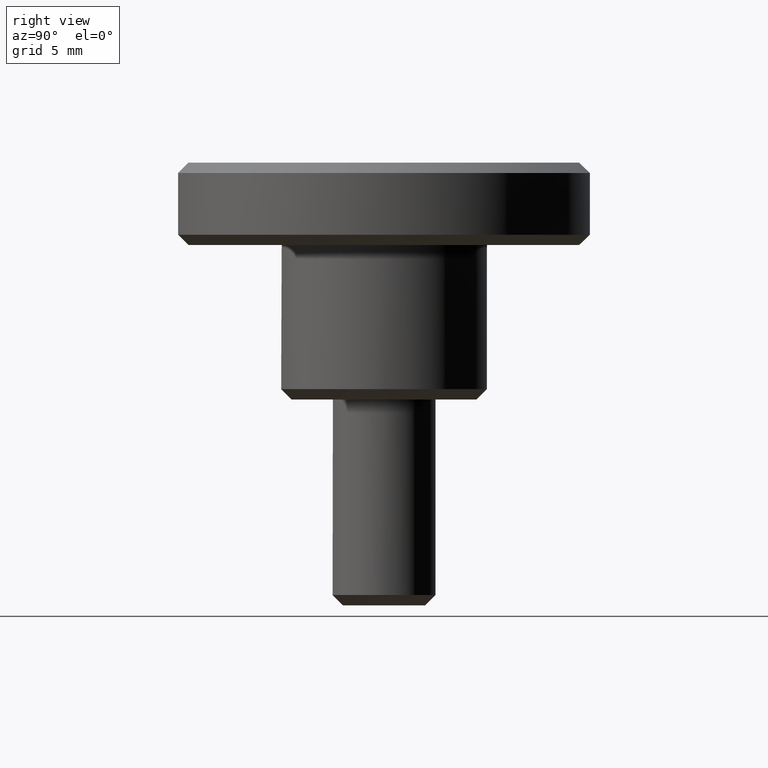
[diagram: clean part render]
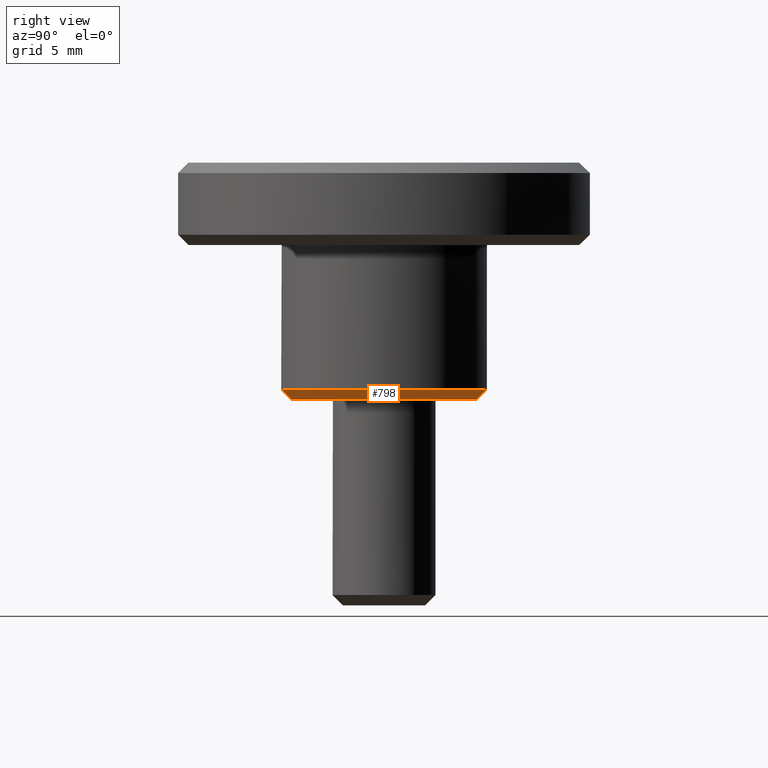
[diagram: same view with one face highlighted and labeled with its STEP entity id]
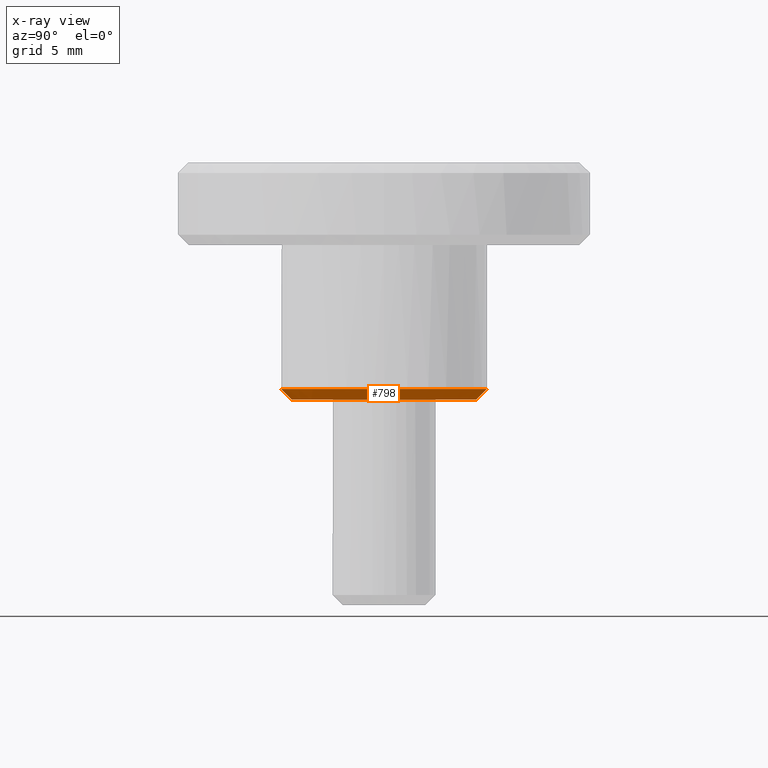
[diagram: x-ray of the same camera — body ghosted, the highlighted face saturated]
A machine part, right view. The second image highlights one B-rep face of the part: STEP entity #798.
The next image is the same camera in x-ray: the body ghosted, the highlighted face saturated — about 0% of this face is hidden behind the body in this view.
In plain terms, the highlighted face is a freeform B-spline surface patch.
Its self-contained STEP definition (entity closure, byte-faithful):
#677=CARTESIAN_POINT('',(-1.813916751045586,-4.104553845459481,-0.012499999999999));
#678=CARTESIAN_POINT('',(-0.928656247279884,-4.495775137049067,-0.012499999999999));
#679=CARTESIAN_POINT('',(0.039160328048953,-4.487329129750467,-0.012499999999999));
#680=CARTESIAN_POINT('',(4.526489457799420,-4.448168801701514,-0.012499999999999));
#681=CARTESIAN_POINT('',(4.487329129750467,0.039160328048953,-0.012499999999999));
#682=CARTESIAN_POINT('',(4.448168801701514,4.526489457799420,-0.012499999999999));
#683=CARTESIAN_POINT('',(-0.039160328048953,4.487329129750467,-0.012499999999999));
#684=CARTESIAN_POINT('',(-2.026256170161715,-4.585038177925872,0.512812499999944));
#685=CARTESIAN_POINT('',(-1.037365937508121,-5.022056335195270,0.512812499999944));
#686=CARTESIAN_POINT('',(0.043744486227942,-5.012621627460113,0.512812499999944));
#687=CARTESIAN_POINT('',(5.056366113688056,-4.968877141232172,0.512812499999944));
#688=CARTESIAN_POINT('',(5.012621627460113,0.043744486227942,0.512812499999944));
#689=CARTESIAN_POINT('',(4.968877141232172,5.056366113688056,0.512812499999944));
#690=CARTESIAN_POINT('',(-0.043744486227942,5.012621627460113,0.512812499999944));
#698=(BOUNDED_SURFACE()B_SPLINE_SURFACE(2,1,((#677,#684),(#678,#685),(#679,#686),(#680,#687),(#681,#688),(#682,#689),(#683,#690)),.UNSPECIFIED.,.F.,.F.,.U.)B_SPLINE_SURFACE_WITH_KNOTS((3,2,2,3),(2,2),(0.0,2.325539913909386,10.631039606442901,18.936539298976420),(0.0,1.0),.UNSPECIFIED.)GEOMETRIC_REPRESENTATION_ITEM()RATIONAL_B_SPLINE_SURFACE(((0.881905454174416,0.881905454174416),(0.917989898732233,0.917989898732233),(1.0,1.0),(0.707106781186548,0.707106781186548),(1.0,1.0),(0.707106781186548,0.707106781186548),(1.0,1.0)))REPRESENTATION_ITEM('')SURFACE());
#699=CARTESIAN_POINT('',(-2.021077159942054,-4.573319047864791,0.500000000000183));
#700=VERTEX_POINT('',#699);
#701=CARTESIAN_POINT('',(0.620639326116273,-4.961331154728281,0.499999999999940));
#702=VERTEX_POINT('',#701);
#703=CARTESIAN_POINT('',(-2.021077159942054,-4.573319047864791,0.500000000000183));
#704=CARTESIAN_POINT('',(-1.055578086262365,-4.999999999999999,0.499999999999945));
#705=CARTESIAN_POINT('',(0.0,-5.0,0.499999999999945));
#706=CARTESIAN_POINT('',(0.311523945374245,-4.999999999999999,0.499999999999945));
#707=CARTESIAN_POINT('',(0.620639326116273,-4.961331154728281,0.499999999999940));
#715=(BOUNDED_CURVE()B_SPLINE_CURVE(2,(#703,#704,#705,#706,#707),.UNSPECIFIED.,.F.,.U.)B_SPLINE_CURVE_WITH_KNOTS((3,2,3),(0.181361578459757,0.250000000000000,0.271473882450313),.UNSPECIFIED.)CURVE()GEOMETRIC_REPRESENTATION_ITEM()RATIONAL_B_SPLINE_CURVE((0.883326595751699,0.919585087123215,1.0,0.974841781794825,0.954005520552827))REPRESENTATION_ITEM(''));
#716=EDGE_CURVE('',#700,#702,#715,.T.);
#717=ORIENTED_EDGE('',*,*,#716,.F.);
#718=CARTESIAN_POINT('',(-1.818969443966854,-4.115987143071772,1.913012E-012));
#719=VERTEX_POINT('',#718);
#720=CARTESIAN_POINT('',(-1.818969443966854,-4.115987143071772,1.913012E-012));
#721=CARTESIAN_POINT('',(-2.021077159942054,-4.573319047864791,0.500000000000183));
#722=QUASI_UNIFORM_CURVE('',1,(#720,#721),.UNSPECIFIED.,.F.,.U.);
#723=EDGE_CURVE('',#719,#700,#722,.T.);
#724=ORIENTED_EDGE('',*,*,#723,.F.);
#725=CARTESIAN_POINT('',(4.500000000000000,0.0,0.0));
#726=VERTEX_POINT('',#725);
#727=CARTESIAN_POINT('',(4.500000000000000,0.0,0.0));
#728=CARTESIAN_POINT('',(4.500000000000000,-4.500000000000000,0.0));
#729=CARTESIAN_POINT('',(0.0,-4.500000000000000,0.0));
#730=CARTESIAN_POINT('',(-0.950020277657045,-4.500000000000001,0.0));
#731=CARTESIAN_POINT('',(-1.818969443966853,-4.115987143071773,1.913012E-012));
#739=(BOUNDED_CURVE()B_SPLINE_CURVE(2,(#727,#728,#729,#730,#731),.UNSPECIFIED.,.F.,.U.)B_SPLINE_CURVE_WITH_KNOTS((3,2,3),(0.500000000000000,0.750000000000000,0.818638421541633),.UNSPECIFIED.)CURVE()GEOMETRIC_REPRESENTATION_ITEM()RATIONAL_B_SPLINE_CURVE((1.0,0.707106781186547,1.0,0.919585087121586,0.883326595750230))REPRESENTATION_ITEM(''));
#740=EDGE_CURVE('',#726,#719,#739,.T.);
#741=ORIENTED_EDGE('',*,*,#740,.F.);
#742=CARTESIAN_POINT('',(-0.039269409749482,4.499828653789633,9.221313E-013));
#743=VERTEX_POINT('',#742);
#744=CARTESIAN_POINT('',(-0.039269409749482,4.499828653789633,9.221313E-013));
#745=CARTESIAN_POINT('',(-0.019635078699949,4.499999999999999,0.0));
#746=CARTESIAN_POINT('',(0.0,4.500000000000000,0.0));
#747=CARTESIAN_POINT('',(4.500000000000000,4.500000000000000,0.0));
#748=CARTESIAN_POINT('',(4.500000000000000,0.0,0.0));
#756=(BOUNDED_CURVE()B_SPLINE_CURVE(2,(#744,#745,#746,#747,#748),.UNSPECIFIED.,.F.,.U.)B_SPLINE_CURVE_WITH_KNOTS((3,2,3),(0.248460105664481,0.250000000000000,0.500000000000000),.UNSPECIFIED.)CURVE()GEOMETRIC_REPRESENTATION_ITEM()RATIONAL_B_SPLINE_CURVE((0.996414028099175,0.998195901565749,1.0,0.707106781186547,1.0))REPRESENTATION_ITEM(''));
#757=EDGE_CURVE('',#743,#726,#756,.T.);
#758=ORIENTED_EDGE('',*,*,#757,.F.);
#759=CARTESIAN_POINT('',(-0.043630800128547,4.999809631702245,0.499999999999251));
#760=VERTEX_POINT('',#759);
#761=CARTESIAN_POINT('',(-0.039269409749482,4.499828653789633,9.221313E-013));
#762=CARTESIAN_POINT('',(-0.043630800128547,4.999809631702245,0.499999999999251));
#763=QUASI_UNIFORM_CURVE('',1,(#761,#762),.UNSPECIFIED.,.F.,.U.);
#764=EDGE_CURVE('',#743,#760,#763,.T.);
#765=ORIENTED_EDGE('',*,*,#764,.T.);
#766=CARTESIAN_POINT('',(5.0,0.0,0.499999999999945));
#767=VERTEX_POINT('',#766);
#768=CARTESIAN_POINT('',(5.0,0.0,0.499999999999945));
#769=CARTESIAN_POINT('',(5.000000000000001,5.000000000000001,0.499999999999945));
#770=CARTESIAN_POINT('',(0.0,5.0,0.499999999999945));
#771=CARTESIAN_POINT('',(-0.021815815368240,5.000000000000001,0.499999999999945));
#772=CARTESIAN_POINT('',(-0.043630800128547,4.999809631702246,0.499999999999251));
#780=(BOUNDED_CURVE()B_SPLINE_CURVE(2,(#768,#769,#770,#771,#772),.UNSPECIFIED.,.F.,.U.)B_SPLINE_CURVE_WITH_KNOTS((3,2,3),(0.500000000000000,0.750000000000000,0.751539828195666),.UNSPECIFIED.)CURVE()GEOMETRIC_REPRESENTATION_ITEM()RATIONAL_B_SPLINE_CURVE((1.0,0.707106781186548,1.0,0.998195979053407,0.996414181165367))REPRESENTATION_ITEM(''));
#781=EDGE_CURVE('',#767,#760,#780,.T.);
#782=ORIENTED_EDGE('',*,*,#781,.F.);
#783=CARTESIAN_POINT('',(0.620639326116273,-4.961331154728281,0.499999999999940));
#784=CARTESIAN_POINT('',(5.000000000000001,-4.413494227686669,0.499999999999945));
#785=CARTESIAN_POINT('',(5.0,0.0,0.499999999999945));
#793=(BOUNDED_CURVE()B_SPLINE_CURVE(2,(#783,#784,#785),.UNSPECIFIED.,.F.,.U.)B_SPLINE_CURVE_WITH_KNOTS((3,3),(0.271473882450313,0.500000000000000),.UNSPECIFIED.)CURVE()GEOMETRIC_REPRESENTATION_ITEM()RATIONAL_B_SPLINE_CURVE((0.954005520552827,0.732264999391723,1.0))REPRESENTATION_ITEM(''));
#794=EDGE_CURVE('',#702,#767,#793,.T.);
#795=ORIENTED_EDGE('',*,*,#794,.F.);
#796=EDGE_LOOP('',(#717,#724,#741,#758,#765,#782,#795));
#797=FACE_OUTER_BOUND('',#796,.T.);
#798=ADVANCED_FACE('',(#797),#698,.T.);